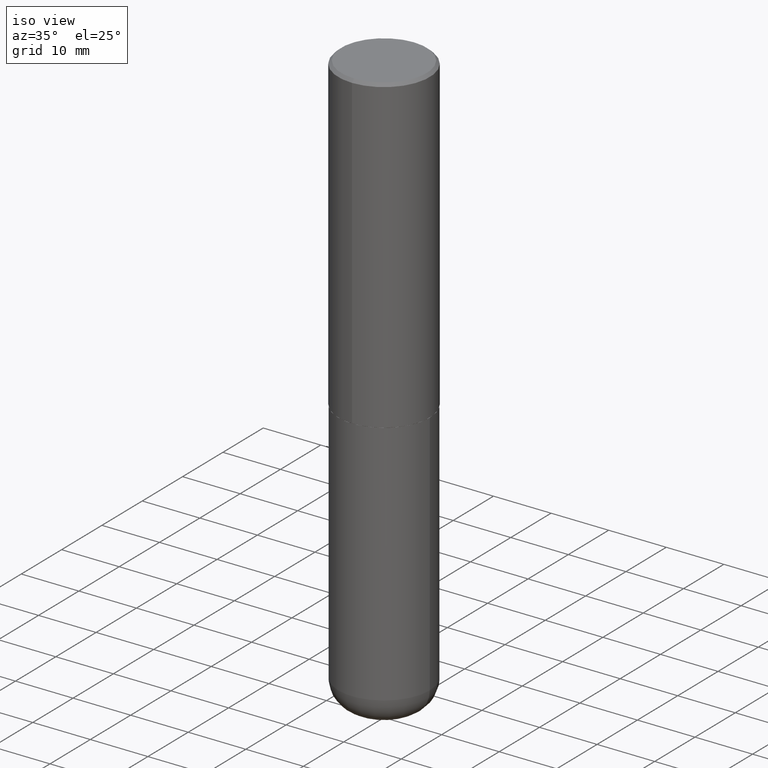
[diagram: clean part render]
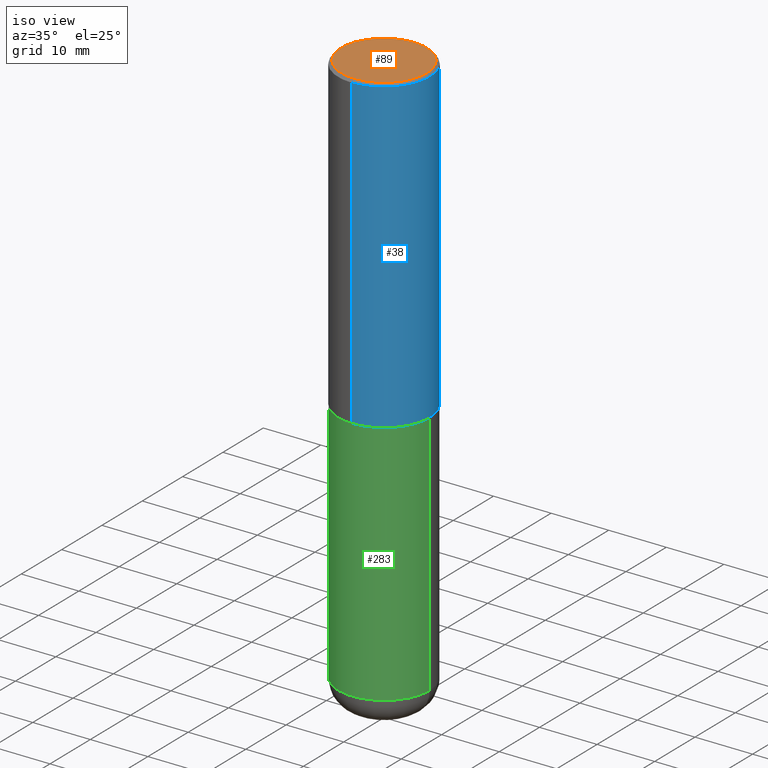
[diagram: same view with three faces highlighted in distinct colors, each labeled with its STEP entity id]
A machine part, iso view with three faces highlighted in distinct colors.
Their STEP definitions:

[orange] entity #89 — the highlighted planar face has unit normal (0, -0, -1).
#5 = CARTESIAN_POINT ( 'NONE',  ( -2.075300644325887493E-15, -0.2924999999999999822, 1.030311686326234990E-15 ) ) ;
#32 = ORIENTED_EDGE ( 'NONE', *, *, #189, .T. ) ;
#49 = DIRECTION ( 'NONE',  ( 2.444852431726452333E-29, -3.492364022149836358E-15, -1.000000000000000000 ) ) ;
#85 = AXIS2_PLACEMENT_3D ( 'NONE', #140, #49, #337 ) ;
#89 = ADVANCED_FACE ( 'NONE', ( #301 ), #212, .F. ) ;
#98 = EDGE_CURVE ( 'NONE', #124, #130, #402, .T. ) ;
#124 = VERTEX_POINT ( 'NONE', #5 ) ;
#130 = VERTEX_POINT ( 'NONE', #178 ) ;
#140 = CARTESIAN_POINT ( 'NONE',  ( 2.042516583223232540E-15, 0.2924999999999999822, -1.017118871555123169E-15 ) ) ;
#142 = AXIS2_PLACEMENT_3D ( 'NONE', #208, #364, #238 ) ;
#147 = CARTESIAN_POINT ( 'NONE',  ( -2.150299018297948745E-46, 3.071607443834507134E-32, 8.795209847407834549E-18 ) ) ;
#152 = AXIS2_PLACEMENT_3D ( 'NONE', #147, #279, #393 ) ;
#178 = CARTESIAN_POINT ( 'NONE',  ( 2.112346210000095838E-15, 0.2924999999999999822, -1.012721266631419361E-15 ) ) ;
#189 = EDGE_CURVE ( 'NONE', #130, #124, #267, .T. ) ;
#198 = EDGE_LOOP ( 'NONE', ( #32, #216 ) ) ;
#208 = CARTESIAN_POINT ( 'NONE',  ( -2.150299018297948745E-46, 3.071607443834507134E-32, 8.795209847407834549E-18 ) ) ;
#212 = PLANE ( 'NONE',  #85 ) ;
#216 = ORIENTED_EDGE ( 'NONE', *, *, #98, .T. ) ;
#238 = DIRECTION ( 'NONE',  ( -6.982962677686265133E-15, -1.000000000000000000, 3.492364022149836753E-15 ) ) ;
#267 = CIRCLE ( 'NONE', #142, 0.2924999999999999822 ) ;
#279 = DIRECTION ( 'NONE',  ( -2.444852431726452894E-29, 3.492364022149836358E-15, 1.000000000000000000 ) ) ;
#301 = FACE_OUTER_BOUND ( 'NONE', #198, .T. ) ;
#337 = DIRECTION ( 'NONE',  ( 6.982962677686265922E-15, 1.000000000000000000, -3.492364022149836358E-15 ) ) ;
#364 = DIRECTION ( 'NONE',  ( -2.444852431726452894E-29, 3.492364022149836358E-15, 1.000000000000000000 ) ) ;
#393 = DIRECTION ( 'NONE',  ( -6.982962677686265133E-15, -1.000000000000000000, 3.492364022149836753E-15 ) ) ;
#402 = CIRCLE ( 'NONE', #152, 0.2924999999999999822 ) ;

[blue] entity #38 — the highlighted cylindrical surface (partial cylindrical patch) has radius 7.9375 mm, axis along (-0, 0, 1).
#3 = VECTOR ( 'NONE', #203, 39.37007874015748143 ) ;
#6 = ORIENTED_EDGE ( 'NONE', *, *, #176, .T. ) ;
#7 = EDGE_CURVE ( 'NONE', #67, #396, #145, .T. ) ;
#9 = CARTESIAN_POINT ( 'NONE',  ( 2.182175836776958741E-15, 0.3124999999999999445, -0.02000000000000116268 ) ) ;
#16 = CIRCLE ( 'NONE', #81, 0.3125000000000000000 ) ;
#28 = EDGE_CURVE ( 'NONE', #67, #302, #288, .T. ) ;
#38 = ADVANCED_FACE ( 'NONE', ( #336 ), #45, .T. ) ;
#41 = CARTESIAN_POINT ( 'NONE',  ( 5.192866564986985411E-29, -7.417781183046251262E-15, -2.123999999999999666 ) ) ;
#45 = CYLINDRICAL_SURFACE ( 'NONE', #214, 0.3125000000000001665 ) ;
#48 = ORIENTED_EDGE ( 'NONE', *, *, #356, .F. ) ;
#67 = VERTEX_POINT ( 'NONE', #332 ) ;
#74 = VERTEX_POINT ( 'NONE', #9 ) ;
#81 = AXIS2_PLACEMENT_3D ( 'NONE', #404, #311, #157 ) ;
#115 = CARTESIAN_POINT ( 'NONE',  ( -2.143905624303602824E-15, -0.3125000000000000555, -0.01999999999999897693 ) ) ;
#145 = LINE ( 'NONE', #338, #3 ) ;
#157 = DIRECTION ( 'NONE',  ( -6.982962677686265133E-15, -1.000000000000000000, 3.496765431890256920E-15 ) ) ;
#168 = LINE ( 'NONE', #394, #345 ) ;
#175 = CARTESIAN_POINT ( 'NONE',  ( 0.000000000000000000, 0.000000000000000000, 0.000000000000000000 ) ) ;
#176 = EDGE_CURVE ( 'NONE', #302, #74, #168, .T. ) ;
#203 = DIRECTION ( 'NONE',  ( -2.444852431726452614E-29, 3.492364022149836358E-15, 1.000000000000000000 ) ) ;
#214 = AXIS2_PLACEMENT_3D ( 'NONE', #175, #278, #399 ) ;
#239 = AXIS2_PLACEMENT_3D ( 'NONE', #41, #275, #367 ) ;
#264 = EDGE_LOOP ( 'NONE', ( #392, #6, #48, #280 ) ) ;
#275 = DIRECTION ( 'NONE',  ( -2.444852431726452894E-29, 3.492364022149836358E-15, 1.000000000000000000 ) ) ;
#278 = DIRECTION ( 'NONE',  ( -2.444852431726452894E-29, 3.492364022149836358E-15, 1.000000000000000000 ) ) ;
#280 = ORIENTED_EDGE ( 'NONE', *, *, #7, .F. ) ;
#288 = CIRCLE ( 'NONE', #239, 0.3125000000000002776 ) ;
#302 = VERTEX_POINT ( 'NONE', #349 ) ;
#303 = DIRECTION ( 'NONE',  ( -2.444852431726452614E-29, 3.492364022149836358E-15, 1.000000000000000000 ) ) ;
#311 = DIRECTION ( 'NONE',  ( -2.444852431726452894E-29, 3.492364022149836358E-15, 1.000000000000000000 ) ) ;
#332 = CARTESIAN_POINT ( 'NONE',  ( -2.182175836776908254E-15, -0.3125000000000077161, -2.123999999999998334 ) ) ;
#336 = FACE_OUTER_BOUND ( 'NONE', #264, .T. ) ;
#338 = CARTESIAN_POINT ( 'NONE',  ( -2.182175836776959136E-15, -0.3125000000000001665, 1.091363756921824478E-15 ) ) ;
#345 = VECTOR ( 'NONE', #303, 39.37007874015748143 ) ;
#349 = CARTESIAN_POINT ( 'NONE',  ( 2.220446049250340297E-15, 0.3124999999999928391, -2.124000000000000554 ) ) ;
#356 = EDGE_CURVE ( 'NONE', #396, #74, #16, .T. ) ;
#367 = DIRECTION ( 'NONE',  ( -6.982962677686265922E-15, -1.000000000000000000, 3.496765431890253764E-15 ) ) ;
#392 = ORIENTED_EDGE ( 'NONE', *, *, #28, .T. ) ;
#394 = CARTESIAN_POINT ( 'NONE',  ( 2.220446049250313475E-15, 0.3125000000000001665, -1.091363756921824478E-15 ) ) ;
#396 = VERTEX_POINT ( 'NONE', #115 ) ;
#399 = DIRECTION ( 'NONE',  ( -6.982962677686265133E-15, -1.000000000000000000, 3.492364022149836358E-15 ) ) ;
#404 = CARTESIAN_POINT ( 'NONE',  ( 4.889704863452922148E-31, -6.984728044299695791E-17, -0.02000000000000006981 ) ) ;

[green] entity #283 — the highlighted cylindrical surface (partial cylindrical patch) has radius 7.9375 mm, axis along (-0, 0, 1).
#15 = AXIS2_PLACEMENT_3D ( 'NONE', #187, #86, #25 ) ;
#17 = EDGE_CURVE ( 'NONE', #244, #172, #315, .T. ) ;
#25 = DIRECTION ( 'NONE',  ( 1.000000000000000000, -6.982962677686266711E-15, 4.876176775795936353E-29 ) ) ;
#27 = CARTESIAN_POINT ( 'NONE',  ( -0.3125000000000000000, 2.220446049250313081E-15, -1.537167215704658232E-29 ) ) ;
#40 = CARTESIAN_POINT ( 'NONE',  ( 0.3125000000000000000, -9.601573681818640393E-15, -2.124999999999999556 ) ) ;
#43 = VERTEX_POINT ( 'NONE', #110 ) ;
#47 = DIRECTION ( 'NONE',  ( 1.000000000000000000, -6.982962677686265133E-15, 0.000000000000000000 ) ) ;
#80 = AXIS2_PLACEMENT_3D ( 'NONE', #217, #417, #329 ) ;
#86 = DIRECTION ( 'NONE',  ( -2.445468806185136597E-29, 3.491481338843145583E-15, 1.000000000000000000 ) ) ;
#103 = LINE ( 'NONE', #373, #219 ) ;
#106 = ORIENTED_EDGE ( 'NONE', *, *, #339, .F. ) ;
#110 = CARTESIAN_POINT ( 'NONE',  ( 0.3124999999999998890, -1.548471973776934408E-14, -3.810000000000000053 ) ) ;
#134 = AXIS2_PLACEMENT_3D ( 'NONE', #141, #137, #47 ) ;
#137 = DIRECTION ( 'NONE',  ( -2.445468806185136597E-29, 3.491481338843145583E-15, 1.000000000000000000 ) ) ;
#141 = CARTESIAN_POINT ( 'NONE',  ( 5.196621213143414147E-29, -7.419397845041682046E-15, -2.124999999999999556 ) ) ;
#144 = ORIENTED_EDGE ( 'NONE', *, *, #17, .F. ) ;
#154 = VECTOR ( 'NONE', #408, 39.37007874015748143 ) ;
#172 = VERTEX_POINT ( 'NONE', #40 ) ;
#177 = EDGE_CURVE ( 'NONE', #43, #172, #103, .T. ) ;
#181 = ORIENTED_EDGE ( 'NONE', *, *, #412, .T. ) ;
#184 = CARTESIAN_POINT ( 'NONE',  ( -0.3125000000000000000, -8.140524823766720019E-15, -2.124999999999999556 ) ) ;
#187 = CARTESIAN_POINT ( 'NONE',  ( 0.000000000000000000, 0.000000000000000000, 0.000000000000000000 ) ) ;
#197 = CIRCLE ( 'NONE', #80, 0.3125000000000000000 ) ;
#217 = CARTESIAN_POINT ( 'NONE',  ( 9.317236151565370389E-29, -1.330254390099238573E-14, -3.810000000000000053 ) ) ;
#219 = VECTOR ( 'NONE', #400, 39.37007874015748143 ) ;
#244 = VERTEX_POINT ( 'NONE', #184 ) ;
#283 = ADVANCED_FACE ( 'NONE', ( #316 ), #411, .T. ) ;
#286 = LINE ( 'NONE', #27, #154 ) ;
#304 = VERTEX_POINT ( 'NONE', #375 ) ;
#315 = CIRCLE ( 'NONE', #134, 0.3125000000000000000 ) ;
#316 = FACE_OUTER_BOUND ( 'NONE', #414, .T. ) ;
#329 = DIRECTION ( 'NONE',  ( 1.000000000000000000, -6.982962677686269077E-15, 0.000000000000000000 ) ) ;
#339 = EDGE_CURVE ( 'NONE', #304, #244, #286, .T. ) ;
#373 = CARTESIAN_POINT ( 'NONE',  ( 0.3125000000000000000, -2.182175836776958347E-15, 1.523805242436230075E-29 ) ) ;
#375 = CARTESIAN_POINT ( 'NONE',  ( -0.3124999999999998890, -1.108209785174207265E-14, -3.810000000000000053 ) ) ;
#395 = ORIENTED_EDGE ( 'NONE', *, *, #177, .T. ) ;
#400 = DIRECTION ( 'NONE',  ( -2.445468806185136877E-29, 3.491481338843145188E-15, 1.000000000000000000 ) ) ;
#408 = DIRECTION ( 'NONE',  ( -2.445468806185136877E-29, 3.491481338843145188E-15, 1.000000000000000000 ) ) ;
#411 = CYLINDRICAL_SURFACE ( 'NONE', #15, 0.3125000000000000000 ) ;
#412 = EDGE_CURVE ( 'NONE', #304, #43, #197, .T. ) ;
#414 = EDGE_LOOP ( 'NONE', ( #106, #181, #395, #144 ) ) ;
#417 = DIRECTION ( 'NONE',  ( -2.445468806185136597E-29, 3.491481338843145583E-15, 1.000000000000000000 ) ) ;